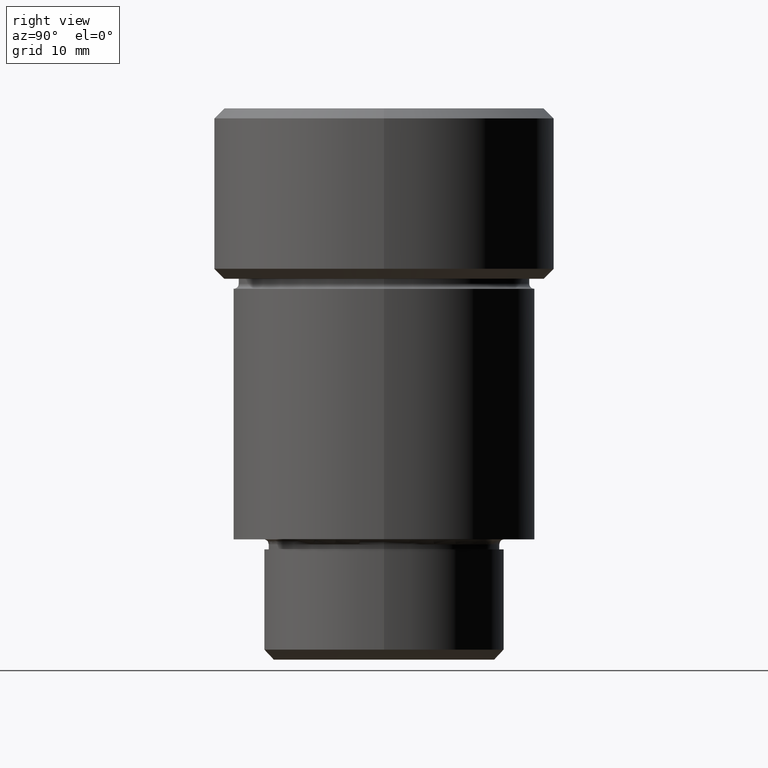
[diagram: clean part render]
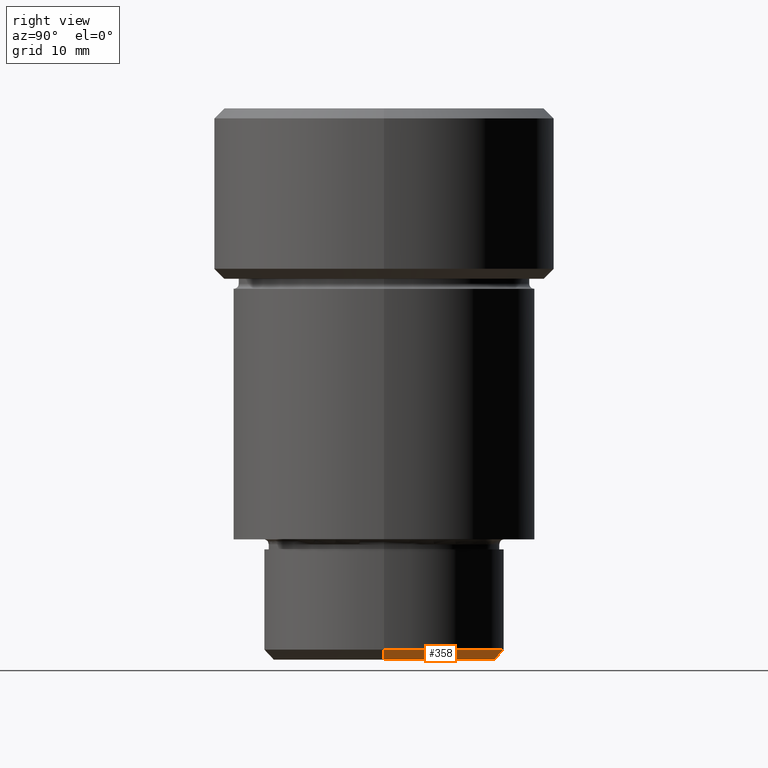
[diagram: same view with one face highlighted and labeled with its STEP entity id]
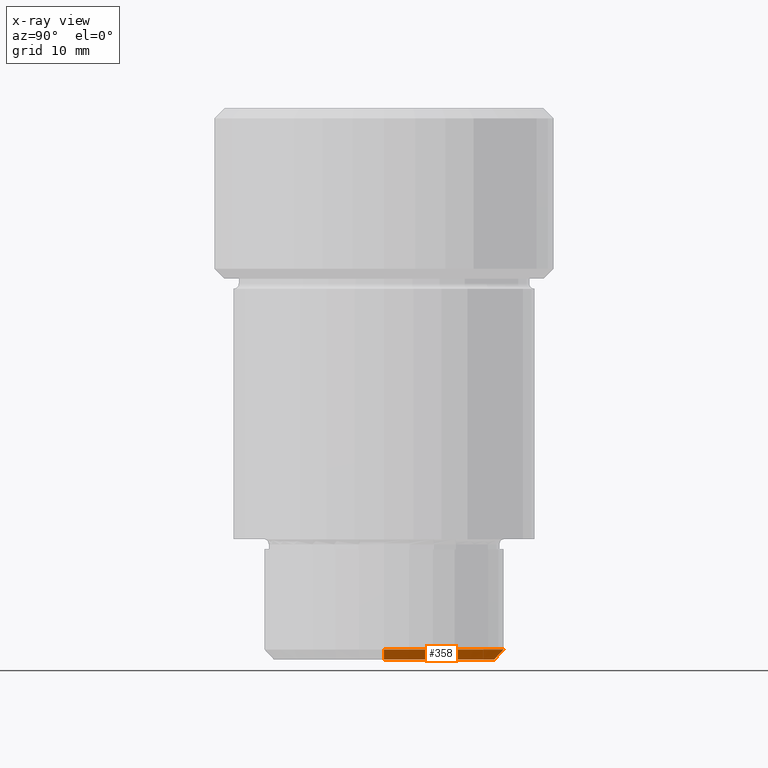
[diagram: x-ray of the same camera — body ghosted, the highlighted face saturated]
A machine part, right view. The second image highlights one B-rep face of the part: STEP entity #358.
The next image is the same camera in x-ray: the body ghosted, the highlighted face saturated — about 0% of this face is hidden behind the body in this view.
In plain terms, the highlighted conical surface has half-angle 45 deg.
Its self-contained STEP definition (entity closure, byte-faithful):
#21 = DIRECTION ( 'NONE',  ( -0.7071067811865524577, 8.659560562354993255E-17, 0.7071067811865426878 ) ) ;
#68 = LINE ( 'NONE', #556, #479 ) ;
#90 = VERTEX_POINT ( 'NONE', #432 ) ;
#102 = EDGE_CURVE ( 'NONE', #490, #90, #788, .T. ) ;
#120 = EDGE_CURVE ( 'NONE', #402, #334, #193, .T. ) ;
#157 = VECTOR ( 'NONE', #21, 1000.000000000000000 ) ;
#178 = ORIENTED_EDGE ( 'NONE', *, *, #120, .F. ) ;
#191 = DIRECTION ( 'NONE',  ( 1.000000000000000000, 0.000000000000000000, 0.000000000000000000 ) ) ;
#193 = CIRCLE ( 'NONE', #344, 12.00000000000000355 ) ;
#201 = LINE ( 'NONE', #205, #157 ) ;
#205 = CARTESIAN_POINT ( 'NONE',  ( -12.00000000000000355, 1.469576158976824342E-15, -54.00000000000001421 ) ) ;
#215 = EDGE_CURVE ( 'NONE', #90, #402, #68, .T. ) ;
#235 = DIRECTION ( 'NONE',  ( 0.7071067811865524577, 0.000000000000000000, 0.7071067811865426878 ) ) ;
#236 = DIRECTION ( 'NONE',  ( -0.000000000000000000, -0.000000000000000000, 1.000000000000000000 ) ) ;
#263 = CARTESIAN_POINT ( 'NONE',  ( 0.000000000000000000, 0.000000000000000000, -54.00000000000001421 ) ) ;
#271 = CONICAL_SURFACE ( 'NONE', #367, 12.00000000000000355, 0.7853981633974552734 ) ;
#323 = CARTESIAN_POINT ( 'NONE',  ( 12.00000000000000355, 0.000000000000000000, -54.00000000000001421 ) ) ;
#334 = VERTEX_POINT ( 'NONE', #744 ) ;
#344 = AXIS2_PLACEMENT_3D ( 'NONE', #415, #236, #419 ) ;
#358 = ADVANCED_FACE ( 'NONE', ( #581 ), #271, .T. ) ;
#367 = AXIS2_PLACEMENT_3D ( 'NONE', #263, #516, #191 ) ;
#373 = EDGE_CURVE ( 'NONE', #490, #334, #201, .T. ) ;
#402 = VERTEX_POINT ( 'NONE', #323 ) ;
#412 = ORIENTED_EDGE ( 'NONE', *, *, #373, .T. ) ;
#415 = CARTESIAN_POINT ( 'NONE',  ( 0.000000000000000000, 0.000000000000000000, -54.00000000000001421 ) ) ;
#419 = DIRECTION ( 'NONE',  ( -1.000000000000000000, 0.000000000000000000, 0.000000000000000000 ) ) ;
#432 = CARTESIAN_POINT ( 'NONE',  ( 11.00000000000001066, 0.000000000000000000, -54.99999999999999289 ) ) ;
#447 = ORIENTED_EDGE ( 'NONE', *, *, #215, .F. ) ;
#479 = VECTOR ( 'NONE', #235, 1000.000000000000000 ) ;
#490 = VERTEX_POINT ( 'NONE', #498 ) ;
#494 = CARTESIAN_POINT ( 'NONE',  ( 0.000000000000000000, 0.000000000000000000, -54.99999999999999289 ) ) ;
#498 = CARTESIAN_POINT ( 'NONE',  ( -11.00000000000001066, 1.408343819019456965E-15, -54.99999999999999289 ) ) ;
#501 = EDGE_LOOP ( 'NONE', ( #721, #412, #178, #447 ) ) ;
#516 = DIRECTION ( 'NONE',  ( -0.000000000000000000, -0.000000000000000000, 1.000000000000000000 ) ) ;
#556 = CARTESIAN_POINT ( 'NONE',  ( 12.00000000000000355, 0.000000000000000000, -54.00000000000001421 ) ) ;
#581 = FACE_OUTER_BOUND ( 'NONE', #501, .T. ) ;
#680 = DIRECTION ( 'NONE',  ( 0.000000000000000000, 0.000000000000000000, -1.000000000000000000 ) ) ;
#721 = ORIENTED_EDGE ( 'NONE', *, *, #102, .F. ) ;
#724 = DIRECTION ( 'NONE',  ( -1.000000000000000000, 0.000000000000000000, 0.000000000000000000 ) ) ;
#744 = CARTESIAN_POINT ( 'NONE',  ( -12.00000000000000355, 1.469576158976824342E-15, -54.00000000000001421 ) ) ;
#761 = AXIS2_PLACEMENT_3D ( 'NONE', #494, #680, #724 ) ;
#788 = CIRCLE ( 'NONE', #761, 11.00000000000001066 ) ;